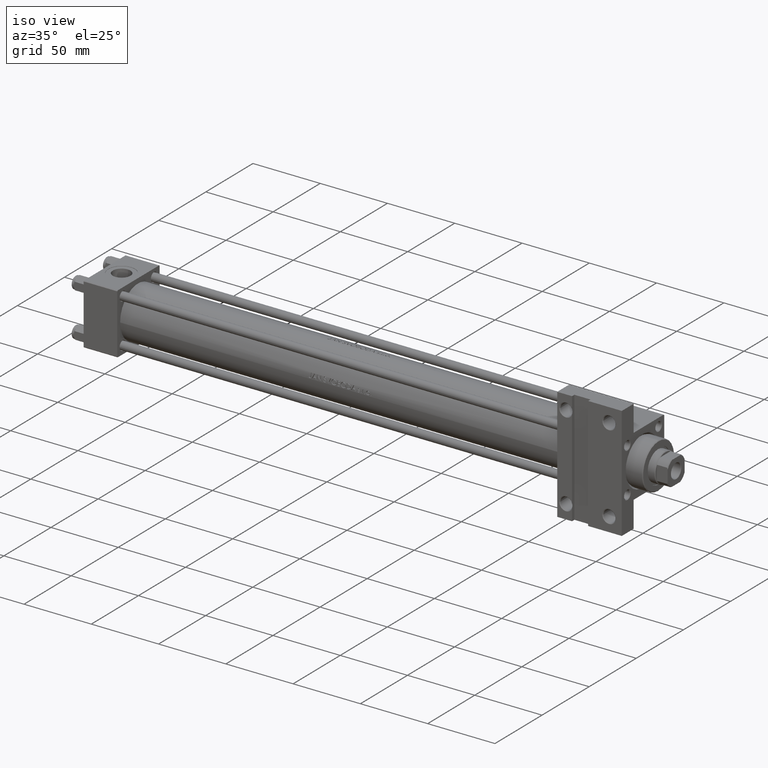
[diagram: clean part render]
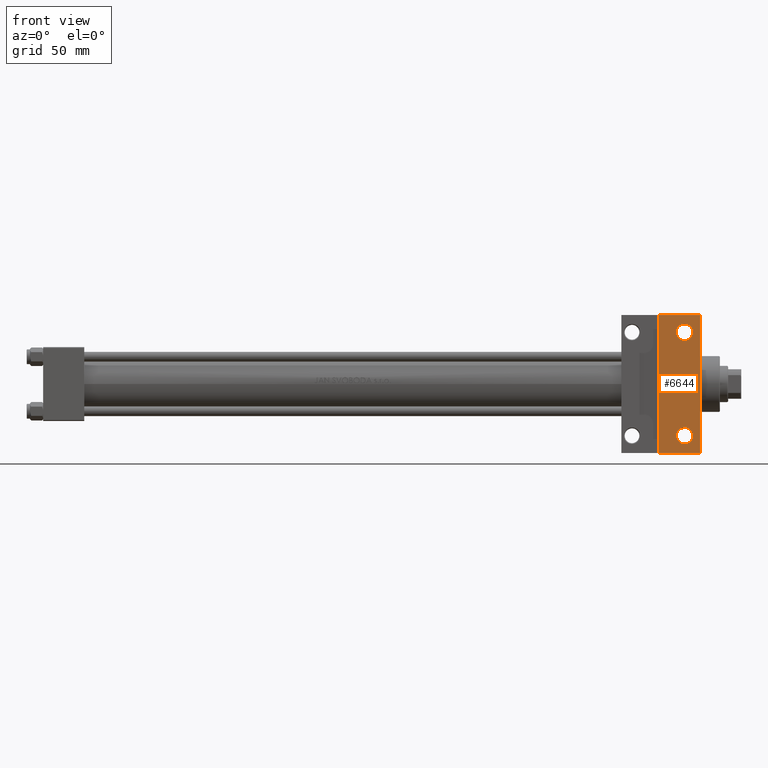
[diagram: tour spotlight — one face highlighted and labeled with its STEP entity id]
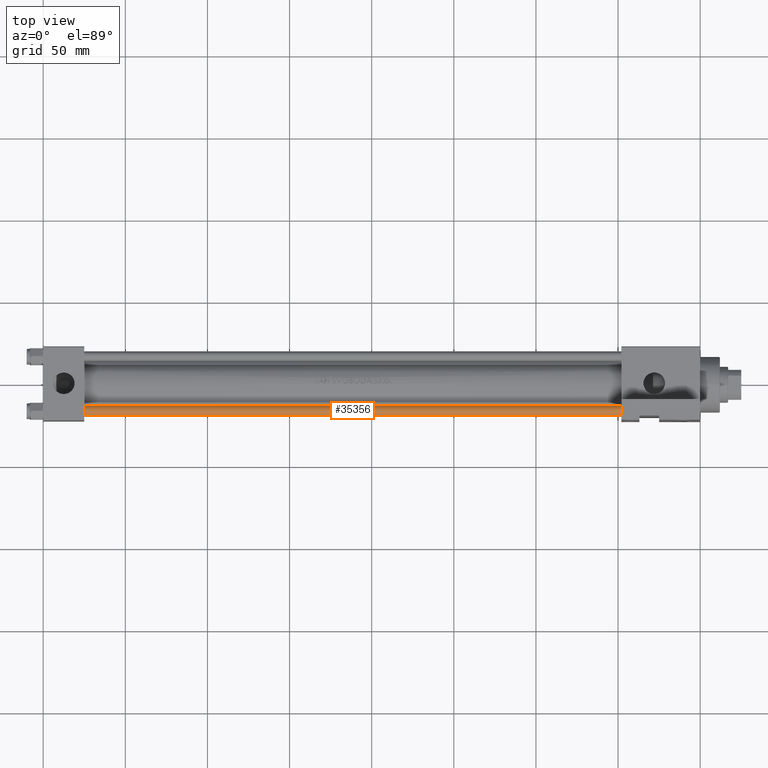
[diagram: tour spotlight — one face highlighted and labeled with its STEP entity id]
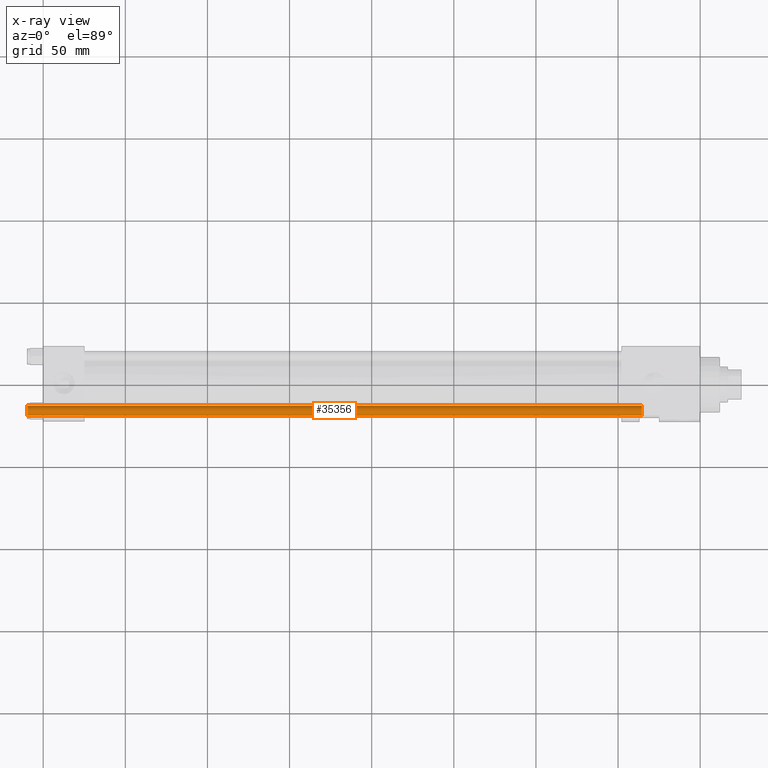
[diagram: x-ray of the same camera — body ghosted, this tour face saturated]
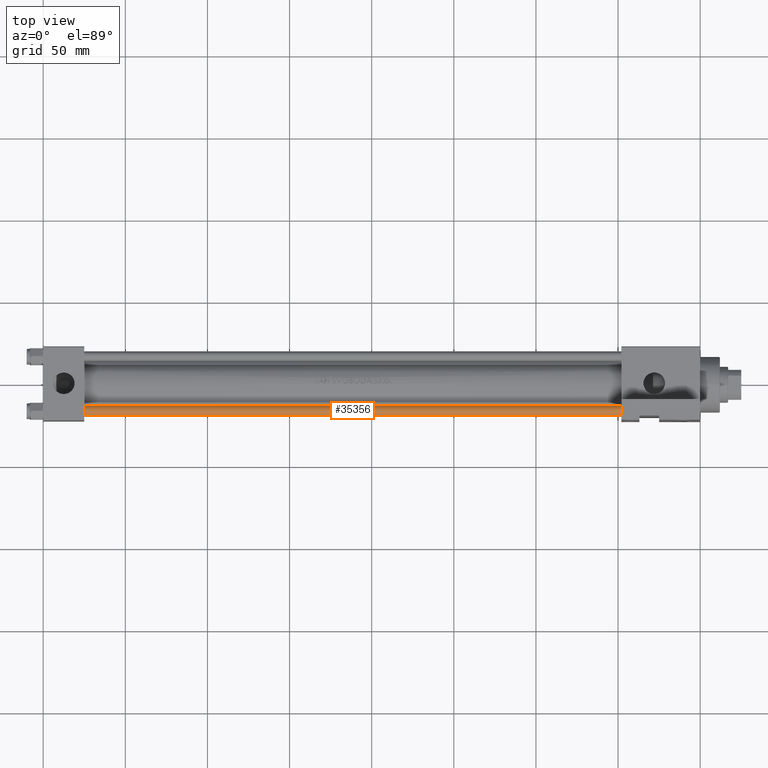
[diagram: tour spotlight — one face highlighted and labeled with its STEP entity id]
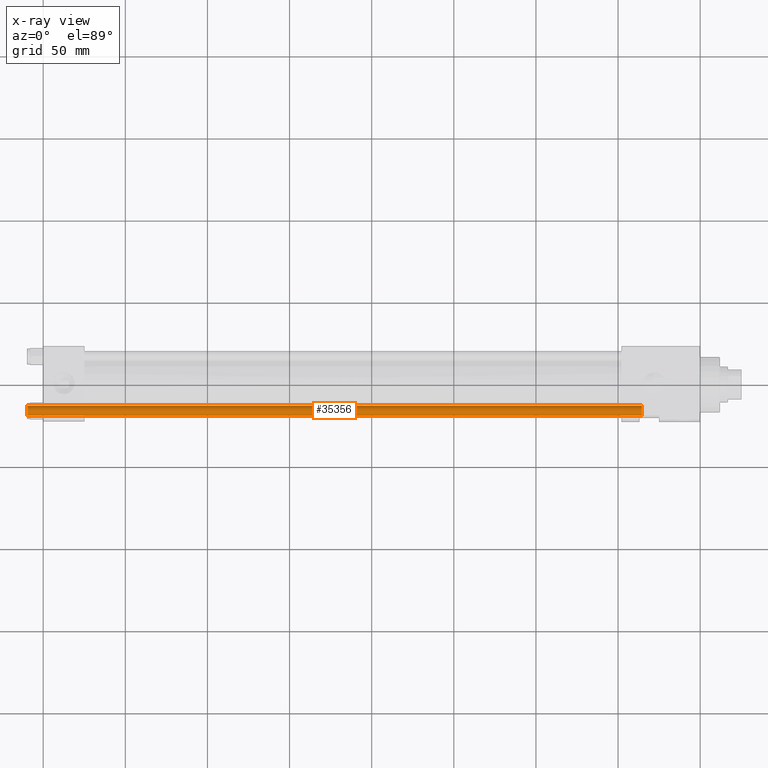
[diagram: x-ray of the same camera — body ghosted, this tour face saturated]
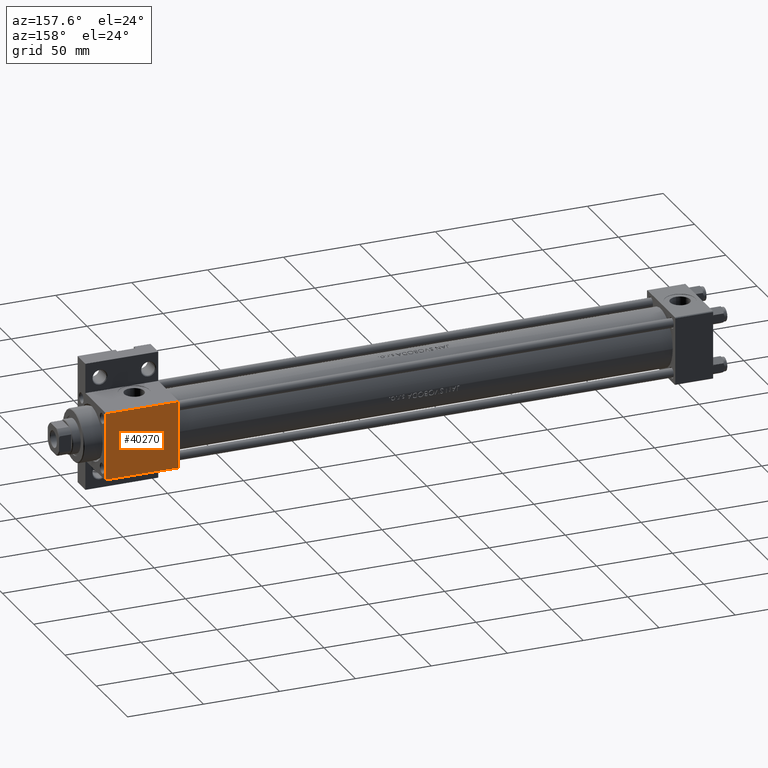
[diagram: tour spotlight — one face highlighted and labeled with its STEP entity id]
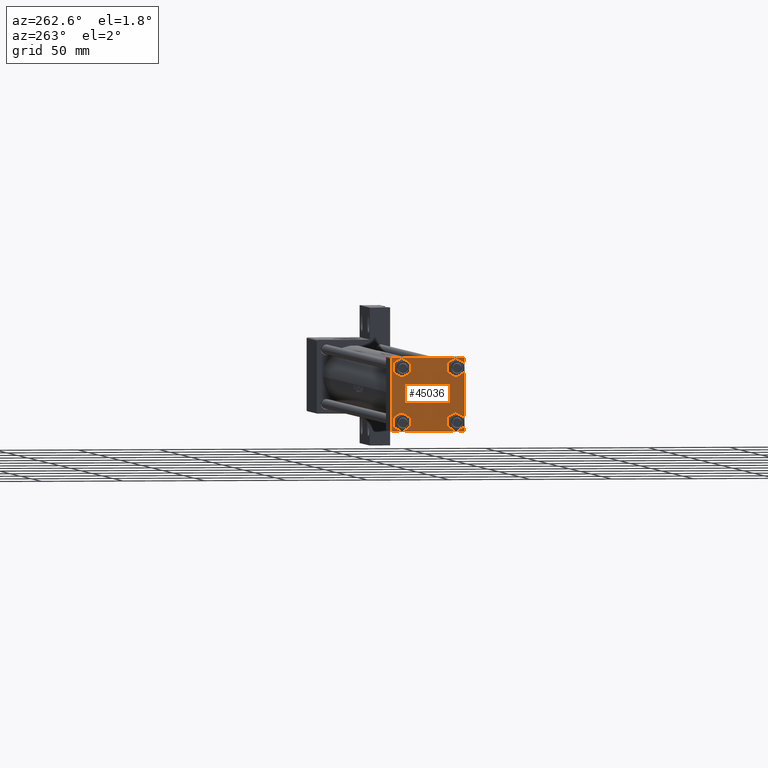
[diagram: tour spotlight — one face highlighted and labeled with its STEP entity id]
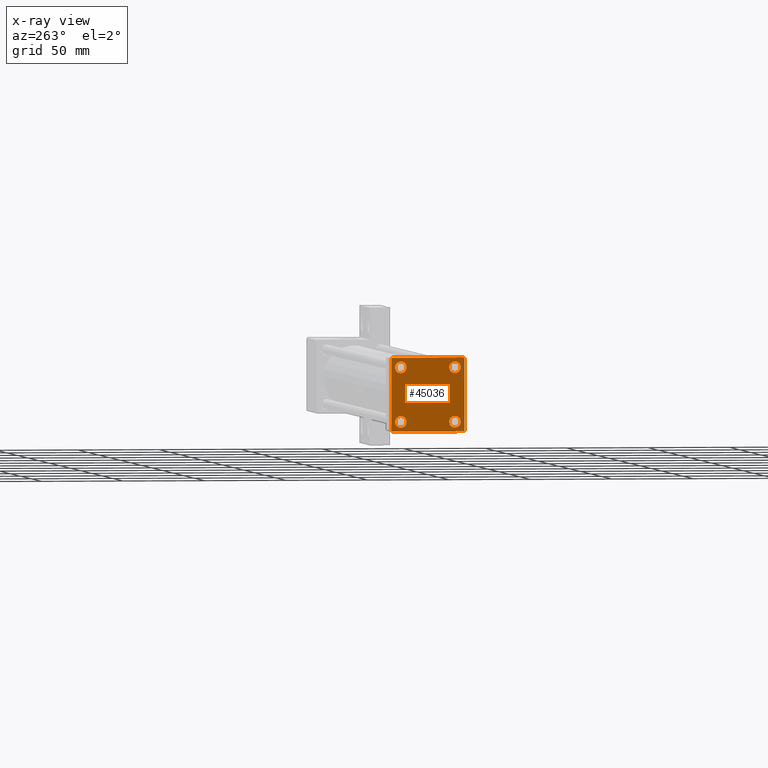
[diagram: x-ray of the same camera — body ghosted, this tour face saturated]
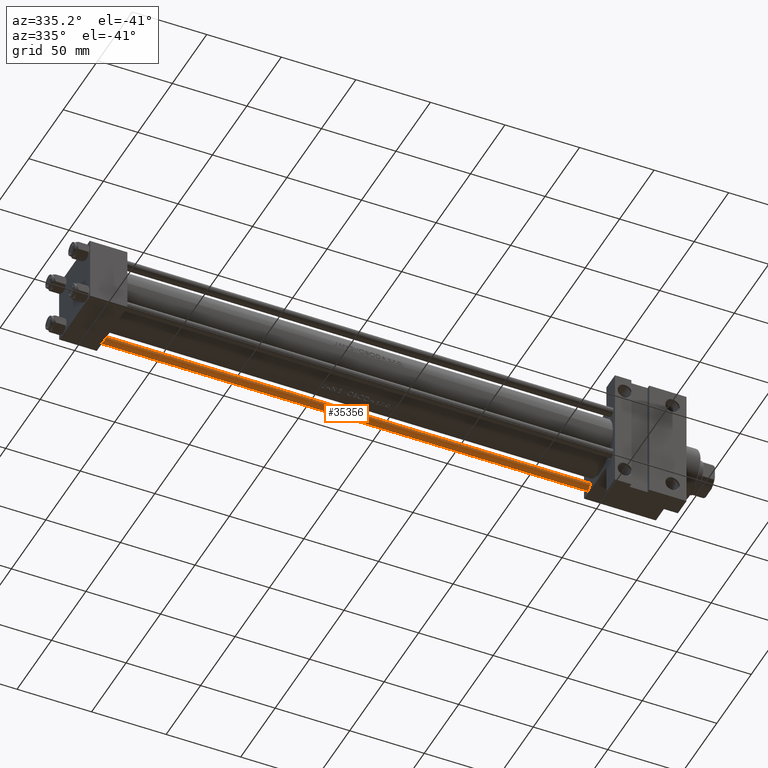
[diagram: tour spotlight — one face highlighted and labeled with its STEP entity id]
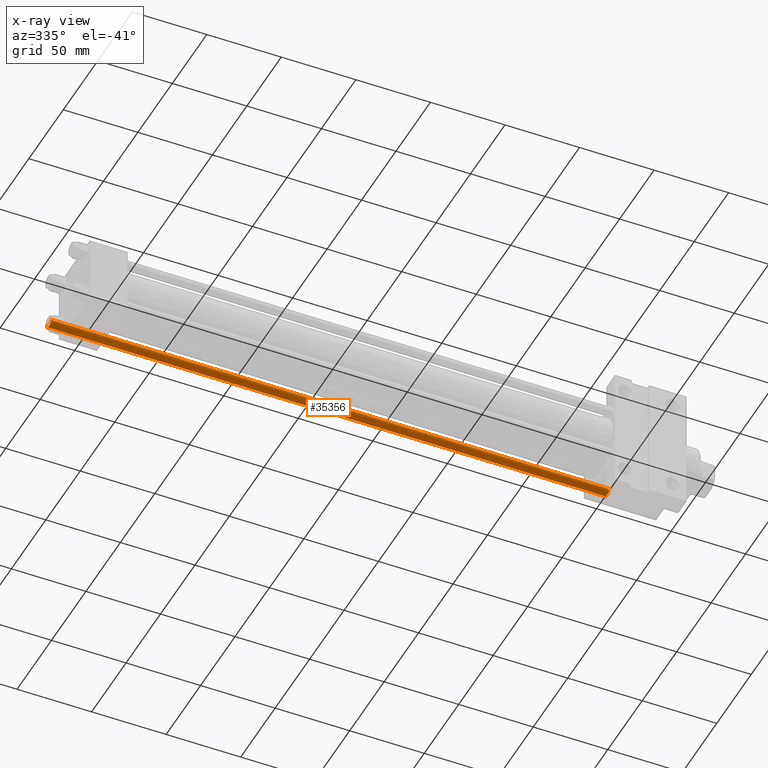
[diagram: x-ray of the same camera — body ghosted, this tour face saturated]
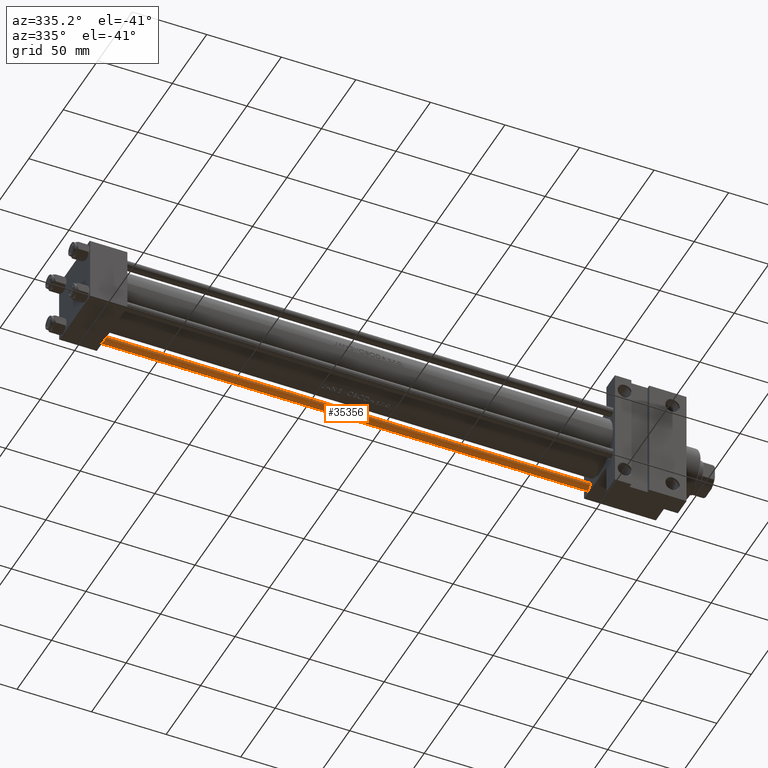
[diagram: tour spotlight — one face highlighted and labeled with its STEP entity id]
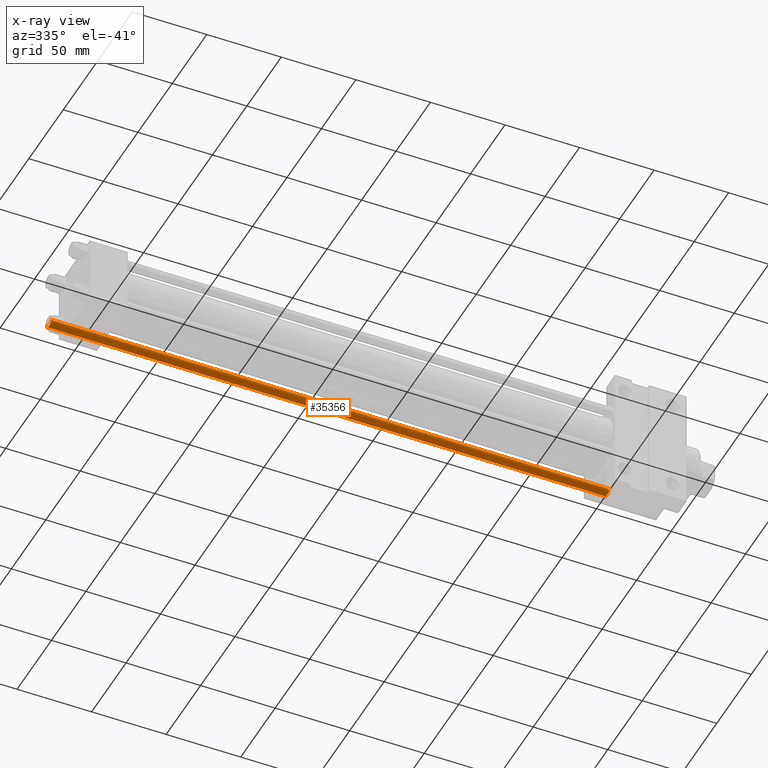
[diagram: x-ray of the same camera — body ghosted, this tour face saturated]
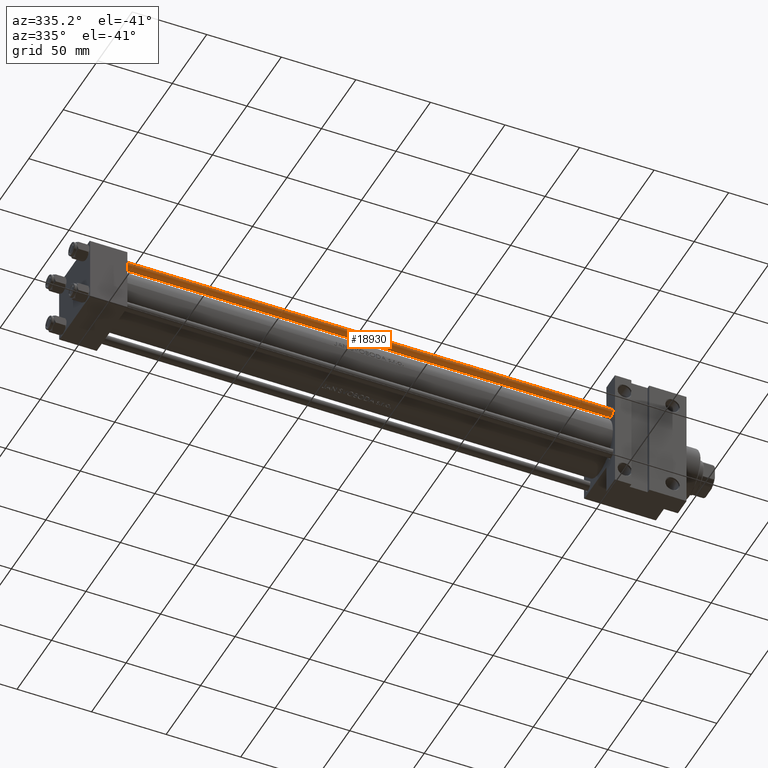
[diagram: tour spotlight — one face highlighted and labeled with its STEP entity id]
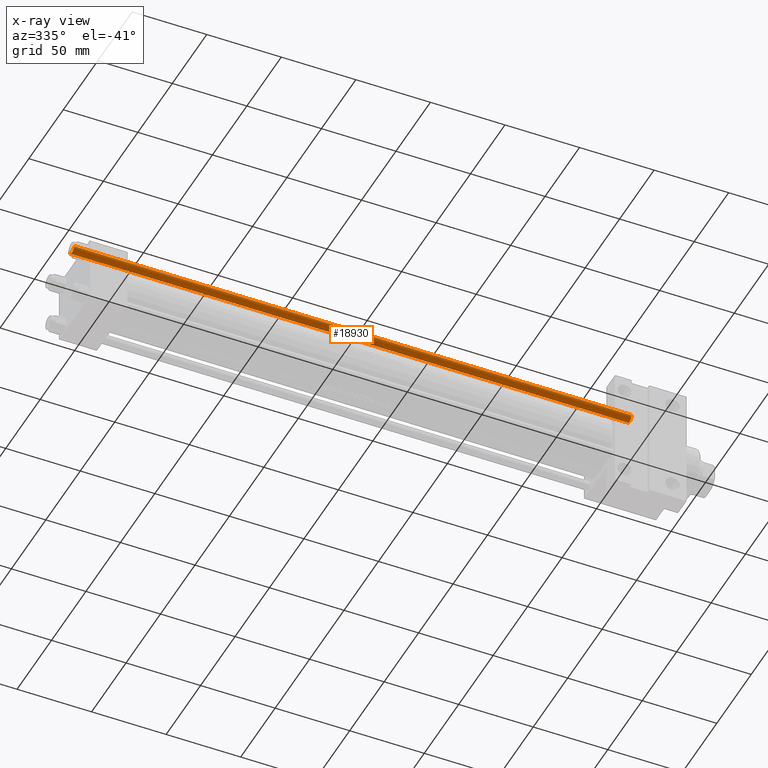
[diagram: x-ray of the same camera — body ghosted, this tour face saturated]
A machine part: a face-by-face anatomy tour. The part has 1102 B-rep faces; the first image is the clean iso view, then the 8 largest visible faces are spotlighted one at a time (largest first), each with its STEP entity span.

Face 1 — front view, entity #6644. In plain terms, the highlighted planar face has unit normal (0, -1, -0).
Definition (entity closure, byte-faithful):
#579 = EDGE_CURVE ( 'NONE', #14646, #38052, #19607, .T. ) ;
#2034 = EDGE_LOOP ( 'NONE', ( #15906, #8051 ) ) ;
#2330 = EDGE_LOOP ( 'NONE', ( #32465, #36974, #33854, #33674 ) ) ;
#2717 = EDGE_CURVE ( 'NONE', #7291, #44337, #41285, .T. ) ;
#2833 = DIRECTION ( 'NONE',  ( -0.000000000000000000, -7.709882115452476934E-17, 1.000000000000000000 ) ) ;
#3171 = CARTESIAN_POINT ( 'NONE',  ( 395.4994999999997844, -31.50000000000000000, -22.50000000000000000 ) ) ;
#3780 = LINE ( 'NONE', #18514, #23329 ) ;
#3814 = EDGE_CURVE ( 'NONE', #14780, #34359, #23994, .T. ) ;
#4974 = VECTOR ( 'NONE', #12231, 1000.000000000000000 ) ;
#5264 = FACE_OUTER_BOUND ( 'NONE', #2330, .T. ) ;
#5645 = DIRECTION ( 'NONE',  ( -0.000000000000000000, -1.000000000000000000, -0.000000000000000000 ) ) ;
#6644 = ADVANCED_FACE ( 'NONE', ( #5264, #9595, #39013 ), #46492, .T. ) ;
#7103 = DIRECTION ( 'NONE',  ( 0.000000000000000000, 1.000000000000000000, 0.000000000000000000 ) ) ;
#7291 = VERTEX_POINT ( 'NONE', #24866 ) ;
#7527 = EDGE_LOOP ( 'NONE', ( #33456, #21257 ) ) ;
#8051 = ORIENTED_EDGE ( 'NONE', *, *, #45797, .T. ) ;
#8374 = CARTESIAN_POINT ( 'NONE',  ( 400.0000000000000000, 22.50000000000000355, -22.49999999999999645 ) ) ;
#9595 = FACE_BOUND ( 'NONE', #7527, .T. ) ;
#9825 = DIRECTION ( 'NONE',  ( 0.000000000000000000, 7.709882115452476934E-17, -1.000000000000000000 ) ) ;
#12231 = DIRECTION ( 'NONE',  ( 0.000000000000000000, -1.000000000000000000, -7.709882115452476934E-17 ) ) ;
#12441 = CIRCLE ( 'NONE', #26328, 4.999499999999823530 ) ;
#13860 = CARTESIAN_POINT ( 'NONE',  ( 395.4994999999997844, 31.50000000000000000, -22.49999999999999645 ) ) ;
#14646 = VERTEX_POINT ( 'NONE', #13860 ) ;
#14780 = VERTEX_POINT ( 'NONE', #34574 ) ;
#15906 = ORIENTED_EDGE ( 'NONE', *, *, #2717, .T. ) ;
#16658 = VECTOR ( 'NONE', #5645, 1000.000000000000000 ) ;
#17653 = CARTESIAN_POINT ( 'NONE',  ( 352.0000000000000000, 41.99999999999996447, -22.50000000000000000 ) ) ;
#18514 = CARTESIAN_POINT ( 'NONE',  ( 352.0000000000000568, -42.00000000000003553, -22.50000000000000000 ) ) ;
#19486 = LINE ( 'NONE', #8374, #4974 ) ;
#19607 = CIRCLE ( 'NONE', #27307, 4.999499999999823530 ) ;
#21257 = ORIENTED_EDGE ( 'NONE', *, *, #579, .T. ) ;
#21411 = DIRECTION ( 'NONE',  ( 0.000000000000000000, 1.000000000000000000, 0.000000000000000000 ) ) ;
#21600 = DIRECTION ( 'NONE',  ( -0.000000000000000000, -7.709882115452476934E-17, 1.000000000000000000 ) ) ;
#23329 = VECTOR ( 'NONE', #36376, 1000.000000000000000 ) ;
#23570 = AXIS2_PLACEMENT_3D ( 'NONE', #42596, #28611, #7103 ) ;
#23694 = EDGE_CURVE ( 'NONE', #14780, #47301, #43689, .T. ) ;
#23746 = AXIS2_PLACEMENT_3D ( 'NONE', #24325, #9825, #31538 ) ;
#23979 = EDGE_CURVE ( 'NONE', #47301, #41010, #19486, .T. ) ;
#23994 = LINE ( 'NONE', #35301, #16658 ) ;
#24325 = CARTESIAN_POINT ( 'NONE',  ( 400.0000000000000000, 22.50000000000000355, -22.49999999999999645 ) ) ;
#24812 = CARTESIAN_POINT ( 'NONE',  ( 390.4999999999999432, -31.50000000000000000, -22.50000000000000000 ) ) ;
#24866 = CARTESIAN_POINT ( 'NONE',  ( 385.5005000000001587, -31.50000000000000000, -22.50000000000000000 ) ) ;
#25979 = CARTESIAN_POINT ( 'NONE',  ( 400.0000000000000000, -42.00000000000004974, -22.50000000000000000 ) ) ;
#26328 = AXIS2_PLACEMENT_3D ( 'NONE', #24812, #2833, #21411 ) ;
#27307 = AXIS2_PLACEMENT_3D ( 'NONE', #42828, #21600, #35598 ) ;
#27649 = EDGE_CURVE ( 'NONE', #41010, #34359, #3780, .T. ) ;
#28611 = DIRECTION ( 'NONE',  ( -0.000000000000000000, -7.709882115452476934E-17, 1.000000000000000000 ) ) ;
#31144 = CARTESIAN_POINT ( 'NONE',  ( 390.4999999999999432, 31.50000000000000000, -22.49999999999999645 ) ) ;
#31538 = DIRECTION ( 'NONE',  ( 0.000000000000000000, 1.000000000000000000, 7.709882115452476934E-17 ) ) ;
#32465 = ORIENTED_EDGE ( 'NONE', *, *, #3814, .F. ) ;
#33456 = ORIENTED_EDGE ( 'NONE', *, *, #34488, .T. ) ;
#33569 = CARTESIAN_POINT ( 'NONE',  ( 375.0000000000000000, -41.99999999999996447, -22.50000000000000000 ) ) ;
#33674 = ORIENTED_EDGE ( 'NONE', *, *, #27649, .T. ) ;
#33854 = ORIENTED_EDGE ( 'NONE', *, *, #23979, .T. ) ;
#34359 = VERTEX_POINT ( 'NONE', #33569 ) ;
#34488 = EDGE_CURVE ( 'NONE', #38052, #14646, #39124, .T. ) ;
#34574 = CARTESIAN_POINT ( 'NONE',  ( 375.0000000000000000, 41.99999999999996447, -22.50000000000000000 ) ) ;
#35301 = CARTESIAN_POINT ( 'NONE',  ( 375.0000000000000000, -41.99999999999996447, -22.50000000000000000 ) ) ;
#35466 = DIRECTION ( 'NONE',  ( 0.000000000000000000, 1.000000000000000000, 0.000000000000000000 ) ) ;
#35598 = DIRECTION ( 'NONE',  ( 0.000000000000000000, 1.000000000000000000, 0.000000000000000000 ) ) ;
#36376 = DIRECTION ( 'NONE',  ( -1.000000000000000000, 2.891205793294679312E-16, -0.000000000000000000 ) ) ;
#36545 = VECTOR ( 'NONE', #47080, 1000.000000000000000 ) ;
#36974 = ORIENTED_EDGE ( 'NONE', *, *, #23694, .T. ) ;
#38052 = VERTEX_POINT ( 'NONE', #41450 ) ;
#39013 = FACE_BOUND ( 'NONE', #2034, .T. ) ;
#39077 = DIRECTION ( 'NONE',  ( -0.000000000000000000, -7.709882115452476934E-17, 1.000000000000000000 ) ) ;
#39124 = CIRCLE ( 'NONE', #45280, 4.999499999999823530 ) ;
#41010 = VERTEX_POINT ( 'NONE', #25979 ) ;
#41285 = CIRCLE ( 'NONE', #23570, 4.999499999999823530 ) ;
#41450 = CARTESIAN_POINT ( 'NONE',  ( 385.5005000000001587, 31.50000000000000000, -22.49999999999999645 ) ) ;
#42108 = CARTESIAN_POINT ( 'NONE',  ( 400.0000000000000000, 41.99999999999996447, -22.50000000000000000 ) ) ;
#42596 = CARTESIAN_POINT ( 'NONE',  ( 390.4999999999999432, -31.50000000000000000, -22.50000000000000000 ) ) ;
#42828 = CARTESIAN_POINT ( 'NONE',  ( 390.4999999999999432, 31.50000000000000000, -22.49999999999999645 ) ) ;
#43689 = LINE ( 'NONE', #17653, #36545 ) ;
#44337 = VERTEX_POINT ( 'NONE', #3171 ) ;
#45280 = AXIS2_PLACEMENT_3D ( 'NONE', #31144, #39077, #35466 ) ;
#45797 = EDGE_CURVE ( 'NONE', #44337, #7291, #12441, .T. ) ;
#46492 = PLANE ( 'NONE',  #23746 ) ;
#47080 = DIRECTION ( 'NONE',  ( 1.000000000000000000, 0.000000000000000000, 0.000000000000000000 ) ) ;
#47301 = VERTEX_POINT ( 'NONE', #42108 ) ;

Face 2 — top view, entity #35356. An x-ray twin of the same camera follows (body ghosted, this face saturated) — the face is partly hidden behind the body. In plain terms, the highlighted cylindrical surface (edge-blend (fillet) strip) has radius 3 mm, axis along (1, -0, 0).
Definition (entity closure, byte-faithful):
#4066 = AXIS2_PLACEMENT_3D ( 'NONE', #5415, #23279, #24002 ) ;
#4864 = CIRCLE ( 'NONE', #4066, 3.000000000000000444 ) ;
#5415 = CARTESIAN_POINT ( 'NONE',  ( 0.000000000000000000, 0.000000000000000000, 0.5000000000000559552 ) ) ;
#7428 = CARTESIAN_POINT ( 'NONE',  ( -3.000000000000000444, 0.000000000000000000, 0.5000000000000559552 ) ) ;
#9141 = ORIENTED_EDGE ( 'NONE', *, *, #30379, .T. ) ;
#9895 = AXIS2_PLACEMENT_3D ( 'NONE', #25104, #39790, #28726 ) ;
#10609 = FACE_OUTER_BOUND ( 'NONE', #44442, .T. ) ;
#11663 = DIRECTION ( 'NONE',  ( -0.000000000000000000, -0.000000000000000000, -1.000000000000000000 ) ) ;
#12102 = ORIENTED_EDGE ( 'NONE', *, *, #14703, .T. ) ;
#14149 = CIRCLE ( 'NONE', #21081, 3.000000000000000444 ) ;
#14490 = EDGE_CURVE ( 'NONE', #17461, #28757, #26797, .T. ) ;
#14703 = EDGE_CURVE ( 'NONE', #47059, #26725, #26639, .T. ) ;
#16732 = DIRECTION ( 'NONE',  ( 0.000000000000000000, 0.000000000000000000, -1.000000000000000000 ) ) ;
#17461 = VERTEX_POINT ( 'NONE', #31084 ) ;
#20667 = EDGE_CURVE ( 'NONE', #26725, #28757, #4864, .T. ) ;
#21081 = AXIS2_PLACEMENT_3D ( 'NONE', #35070, #16732, #46152 ) ;
#23279 = DIRECTION ( 'NONE',  ( -0.000000000000000000, -0.000000000000000000, 1.000000000000000000 ) ) ;
#24002 = DIRECTION ( 'NONE',  ( 1.000000000000000000, 0.000000000000000000, 0.000000000000000000 ) ) ;
#25104 = CARTESIAN_POINT ( 'NONE',  ( 0.000000000000000000, 0.000000000000000000, 375.0000000000000000 ) ) ;
#25247 = CARTESIAN_POINT ( 'NONE',  ( 3.000000000000000444, 3.673940397442060361E-16, 0.5000000000000559552 ) ) ;
#25816 = CYLINDRICAL_SURFACE ( 'NONE', #9895, 3.000000000000000444 ) ;
#26639 = LINE ( 'NONE', #30481, #35474 ) ;
#26725 = VERTEX_POINT ( 'NONE', #7428 ) ;
#26797 = LINE ( 'NONE', #45338, #32412 ) ;
#28726 = DIRECTION ( 'NONE',  ( -1.000000000000000000, 0.000000000000000000, 0.000000000000000000 ) ) ;
#28757 = VERTEX_POINT ( 'NONE', #25247 ) ;
#30379 = EDGE_CURVE ( 'NONE', #17461, #47059, #14149, .T. ) ;
#30481 = CARTESIAN_POINT ( 'NONE',  ( -3.000000000000000444, 0.000000000000000000, 375.0000000000000000 ) ) ;
#31084 = CARTESIAN_POINT ( 'NONE',  ( 3.000000000000000444, 3.673940397442060361E-16, 374.5000000000000000 ) ) ;
#32412 = VECTOR ( 'NONE', #38112, 1000.000000000000000 ) ;
#34958 = ORIENTED_EDGE ( 'NONE', *, *, #20667, .T. ) ;
#35070 = CARTESIAN_POINT ( 'NONE',  ( 0.000000000000000000, 0.000000000000000000, 374.5000000000000000 ) ) ;
#35356 = ADVANCED_FACE ( 'NONE', ( #10609 ), #25816, .T. ) ;
#35474 = VECTOR ( 'NONE', #11663, 1000.000000000000000 ) ;
#38112 = DIRECTION ( 'NONE',  ( -0.000000000000000000, -0.000000000000000000, -1.000000000000000000 ) ) ;
#39790 = DIRECTION ( 'NONE',  ( -0.000000000000000000, -0.000000000000000000, -1.000000000000000000 ) ) ;
#44442 = EDGE_LOOP ( 'NONE', ( #46754, #9141, #12102, #34958 ) ) ;
#45338 = CARTESIAN_POINT ( 'NONE',  ( 3.000000000000000444, 3.673940397442060361E-16, 375.0000000000000000 ) ) ;
#46152 = DIRECTION ( 'NONE',  ( 1.000000000000000000, 0.000000000000000000, 0.000000000000000000 ) ) ;
#46754 = ORIENTED_EDGE ( 'NONE', *, *, #14490, .F. ) ;
#47059 = VERTEX_POINT ( 'NONE', #47726 ) ;
#47726 = CARTESIAN_POINT ( 'NONE',  ( -3.000000000000000444, 0.000000000000000000, 374.5000000000000000 ) ) ;

Face 3 — top view, entity #35356. An x-ray twin of the same camera follows (body ghosted, this face saturated) — the face is partly hidden behind the body. In plain terms, the highlighted cylindrical surface (edge-blend (fillet) strip) has radius 3 mm, axis along (-1, 0, 0).
Definition (entity closure, byte-faithful):
#4066 = AXIS2_PLACEMENT_3D ( 'NONE', #5415, #23279, #24002 ) ;
#4864 = CIRCLE ( 'NONE', #4066, 3.000000000000000444 ) ;
#5415 = CARTESIAN_POINT ( 'NONE',  ( 0.000000000000000000, 0.000000000000000000, 0.5000000000000559552 ) ) ;
#7428 = CARTESIAN_POINT ( 'NONE',  ( -3.000000000000000444, 0.000000000000000000, 0.5000000000000559552 ) ) ;
#9141 = ORIENTED_EDGE ( 'NONE', *, *, #30379, .T. ) ;
#9895 = AXIS2_PLACEMENT_3D ( 'NONE', #25104, #39790, #28726 ) ;
#10609 = FACE_OUTER_BOUND ( 'NONE', #44442, .T. ) ;
#11663 = DIRECTION ( 'NONE',  ( -0.000000000000000000, -0.000000000000000000, -1.000000000000000000 ) ) ;
#12102 = ORIENTED_EDGE ( 'NONE', *, *, #14703, .T. ) ;
#14149 = CIRCLE ( 'NONE', #21081, 3.000000000000000444 ) ;
#14490 = EDGE_CURVE ( 'NONE', #17461, #28757, #26797, .T. ) ;
#14703 = EDGE_CURVE ( 'NONE', #47059, #26725, #26639, .T. ) ;
#16732 = DIRECTION ( 'NONE',  ( 0.000000000000000000, 0.000000000000000000, -1.000000000000000000 ) ) ;
#17461 = VERTEX_POINT ( 'NONE', #31084 ) ;
#20667 = EDGE_CURVE ( 'NONE', #26725, #28757, #4864, .T. ) ;
#21081 = AXIS2_PLACEMENT_3D ( 'NONE', #35070, #16732, #46152 ) ;
#23279 = DIRECTION ( 'NONE',  ( -0.000000000000000000, -0.000000000000000000, 1.000000000000000000 ) ) ;
#24002 = DIRECTION ( 'NONE',  ( 1.000000000000000000, 0.000000000000000000, 0.000000000000000000 ) ) ;
#25104 = CARTESIAN_POINT ( 'NONE',  ( 0.000000000000000000, 0.000000000000000000, 375.0000000000000000 ) ) ;
#25247 = CARTESIAN_POINT ( 'NONE',  ( 3.000000000000000444, 3.673940397442060361E-16, 0.5000000000000559552 ) ) ;
#25816 = CYLINDRICAL_SURFACE ( 'NONE', #9895, 3.000000000000000444 ) ;
#26639 = LINE ( 'NONE', #30481, #35474 ) ;
#26725 = VERTEX_POINT ( 'NONE', #7428 ) ;
#26797 = LINE ( 'NONE', #45338, #32412 ) ;
#28726 = DIRECTION ( 'NONE',  ( -1.000000000000000000, 0.000000000000000000, 0.000000000000000000 ) ) ;
#28757 = VERTEX_POINT ( 'NONE', #25247 ) ;
#30379 = EDGE_CURVE ( 'NONE', #17461, #47059, #14149, .T. ) ;
#30481 = CARTESIAN_POINT ( 'NONE',  ( -3.000000000000000444, 0.000000000000000000, 375.0000000000000000 ) ) ;
#31084 = CARTESIAN_POINT ( 'NONE',  ( 3.000000000000000444, 3.673940397442060361E-16, 374.5000000000000000 ) ) ;
#32412 = VECTOR ( 'NONE', #38112, 1000.000000000000000 ) ;
#34958 = ORIENTED_EDGE ( 'NONE', *, *, #20667, .T. ) ;
#35070 = CARTESIAN_POINT ( 'NONE',  ( 0.000000000000000000, 0.000000000000000000, 374.5000000000000000 ) ) ;
#35356 = ADVANCED_FACE ( 'NONE', ( #10609 ), #25816, .T. ) ;
#35474 = VECTOR ( 'NONE', #11663, 1000.000000000000000 ) ;
#38112 = DIRECTION ( 'NONE',  ( -0.000000000000000000, -0.000000000000000000, -1.000000000000000000 ) ) ;
#39790 = DIRECTION ( 'NONE',  ( -0.000000000000000000, -0.000000000000000000, -1.000000000000000000 ) ) ;
#44442 = EDGE_LOOP ( 'NONE', ( #46754, #9141, #12102, #34958 ) ) ;
#45338 = CARTESIAN_POINT ( 'NONE',  ( 3.000000000000000444, 3.673940397442060361E-16, 375.0000000000000000 ) ) ;
#46152 = DIRECTION ( 'NONE',  ( 1.000000000000000000, 0.000000000000000000, 0.000000000000000000 ) ) ;
#46754 = ORIENTED_EDGE ( 'NONE', *, *, #14490, .F. ) ;
#47059 = VERTEX_POINT ( 'NONE', #47726 ) ;
#47726 = CARTESIAN_POINT ( 'NONE',  ( -3.000000000000000444, 0.000000000000000000, 374.5000000000000000 ) ) ;

Face 4 — auxiliary view, entity #40270. In plain terms, the highlighted planar face has unit normal (0, -1, -0).
Definition (entity closure, byte-faithful):
#650 = VECTOR ( 'NONE', #27094, 1000.000000000000000 ) ;
#2526 = VECTOR ( 'NONE', #6825, 1000.000000000000000 ) ;
#2819 = VERTEX_POINT ( 'NONE', #18696 ) ;
#3880 = CARTESIAN_POINT ( 'NONE',  ( 352.0000000000000568, 22.00000000000000355, 22.50000000000000355 ) ) ;
#5214 = CARTESIAN_POINT ( 'NONE',  ( 400.0000000000000000, -21.99999999999998224, 22.49999999999999289 ) ) ;
#6825 = DIRECTION ( 'NONE',  ( 0.000000000000000000, -1.000000000000000000, -2.312964634635742957E-16 ) ) ;
#7430 = ORIENTED_EDGE ( 'NONE', *, *, #35088, .T. ) ;
#7739 = FACE_OUTER_BOUND ( 'NONE', #37999, .T. ) ;
#10022 = LINE ( 'NONE', #43293, #29901 ) ;
#10455 = LINE ( 'NONE', #25178, #2526 ) ;
#11838 = DIRECTION ( 'NONE',  ( 0.000000000000000000, 2.312964634635742957E-16, -1.000000000000000000 ) ) ;
#15487 = ORIENTED_EDGE ( 'NONE', *, *, #36463, .T. ) ;
#17406 = CARTESIAN_POINT ( 'NONE',  ( 400.0000000000000000, -21.99999999999999645, 22.49999999999999289 ) ) ;
#18696 = CARTESIAN_POINT ( 'NONE',  ( 352.0000000000000568, -21.99999999999998224, 22.49999999999999289 ) ) ;
#19091 = PLANE ( 'NONE',  #28465 ) ;
#20775 = EDGE_CURVE ( 'NONE', #27768, #47313, #10455, .T. ) ;
#23718 = VERTEX_POINT ( 'NONE', #3880 ) ;
#25130 = DIRECTION ( 'NONE',  ( 1.000000000000000000, 0.000000000000000000, 0.000000000000000000 ) ) ;
#25178 = CARTESIAN_POINT ( 'NONE',  ( 400.0000000000000000, 22.50000000000000355, 22.50000000000000355 ) ) ;
#26488 = CARTESIAN_POINT ( 'NONE',  ( 400.0000000000000000, 22.00000000000000355, 22.50000000000000355 ) ) ;
#26669 = ORIENTED_EDGE ( 'NONE', *, *, #39271, .T. ) ;
#27094 = DIRECTION ( 'NONE',  ( 0.000000000000000000, -1.000000000000000000, -2.312964634635742957E-16 ) ) ;
#27396 = ORIENTED_EDGE ( 'NONE', *, *, #20775, .F. ) ;
#27768 = VERTEX_POINT ( 'NONE', #26488 ) ;
#28465 = AXIS2_PLACEMENT_3D ( 'NONE', #43924, #11838, #37416 ) ;
#29901 = VECTOR ( 'NONE', #43532, 1000.000000000000000 ) ;
#32238 = VECTOR ( 'NONE', #25130, 1000.000000000000000 ) ;
#35088 = EDGE_CURVE ( 'NONE', #27768, #23718, #10022, .T. ) ;
#36463 = EDGE_CURVE ( 'NONE', #23718, #2819, #44925, .T. ) ;
#37416 = DIRECTION ( 'NONE',  ( 0.000000000000000000, 1.000000000000000000, 2.312964634635742957E-16 ) ) ;
#37999 = EDGE_LOOP ( 'NONE', ( #27396, #7430, #15487, #26669 ) ) ;
#38878 = LINE ( 'NONE', #17406, #32238 ) ;
#39271 = EDGE_CURVE ( 'NONE', #2819, #47313, #38878, .T. ) ;
#40270 = ADVANCED_FACE ( 'NONE', ( #7739 ), #19091, .F. ) ;
#41544 = CARTESIAN_POINT ( 'NONE',  ( 352.0000000000000568, 22.50000000000000355, 22.50000000000000355 ) ) ;
#43293 = CARTESIAN_POINT ( 'NONE',  ( 352.0000000000000568, 22.00000000000000355, 22.50000000000000355 ) ) ;
#43532 = DIRECTION ( 'NONE',  ( -1.000000000000000000, 0.000000000000000000, 0.000000000000000000 ) ) ;
#43924 = CARTESIAN_POINT ( 'NONE',  ( 400.0000000000000000, 22.50000000000000355, 22.50000000000000355 ) ) ;
#44925 = LINE ( 'NONE', #41544, #650 ) ;
#47313 = VERTEX_POINT ( 'NONE', #5214 ) ;

Face 5 — auxiliary view, entity #45036. An x-ray twin of the same camera follows (body ghosted, this face saturated) — the face is partly hidden behind the body. In plain terms, the highlighted planar face has unit normal (-1, 0, -0).
Definition (entity closure, byte-faithful):
#123 = EDGE_CURVE ( 'NONE', #31862, #7141, #6472, .T. ) ;
#814 = CARTESIAN_POINT ( 'NONE',  ( 0.000000000000000000, -22.50000000000000000, 22.00000000000000000 ) ) ;
#1523 = DIRECTION ( 'NONE',  ( 0.000000000000000000, 0.000000000000000000, 1.000000000000000000 ) ) ;
#2068 = DIRECTION ( 'NONE',  ( 0.000000000000000000, 0.000000000000000000, 1.000000000000000000 ) ) ;
#2218 = DIRECTION ( 'NONE',  ( 0.000000000000000000, -1.000000000000000000, -2.312964634635742957E-16 ) ) ;
#2332 = DIRECTION ( 'NONE',  ( -0.000000000000000000, 0.7071067811865525687, 0.7071067811865425767 ) ) ;
#2555 = DIRECTION ( 'NONE',  ( 0.000000000000000000, 0.7071067811865474617, -0.7071067811865474617 ) ) ;
#2564 = DIRECTION ( 'NONE',  ( 1.000000000000000000, -0.000000000000000000, 0.000000000000000000 ) ) ;
#3533 = CARTESIAN_POINT ( 'NONE',  ( 0.000000000000000000, -16.59999999999999076, 16.60000000000000853 ) ) ;
#3938 = EDGE_CURVE ( 'NONE', #18176, #41321, #32394, .T. ) ;
#4102 = CARTESIAN_POINT ( 'NONE',  ( 0.000000000000000000, -22.50000000000000000, -21.99999999999997158 ) ) ;
#4277 = CARTESIAN_POINT ( 'NONE',  ( 0.000000000000000000, 16.59999999999999787, -16.60000000000000497 ) ) ;
#5416 = VECTOR ( 'NONE', #2218, 1000.000000000000000 ) ;
#6066 = ORIENTED_EDGE ( 'NONE', *, *, #35815, .T. ) ;
#6401 = PLANE ( 'NONE',  #21640 ) ;
#6472 = CIRCLE ( 'NONE', #24997, 3.499999999999996003 ) ;
#6626 = DIRECTION ( 'NONE',  ( -1.000000000000000000, 0.000000000000000000, -0.000000000000000000 ) ) ;
#7141 = VERTEX_POINT ( 'NONE', #26104 ) ;
#7684 = CIRCLE ( 'NONE', #37748, 3.499999999999996003 ) ;
#8220 = CARTESIAN_POINT ( 'NONE',  ( 0.000000000000000000, 22.25000000000014566, -22.24999999999984013 ) ) ;
#8252 = LINE ( 'NONE', #43967, #36200 ) ;
#8552 = VERTEX_POINT ( 'NONE', #16502 ) ;
#8917 = EDGE_CURVE ( 'NONE', #33128, #31658, #7684, .T. ) ;
#9465 = EDGE_CURVE ( 'NONE', #20098, #36723, #8252, .T. ) ;
#9581 = LINE ( 'NONE', #24312, #47511 ) ;
#10014 = FACE_BOUND ( 'NONE', #42785, .T. ) ;
#10189 = LINE ( 'NONE', #10653, #5416 ) ;
#10202 = CARTESIAN_POINT ( 'NONE',  ( 0.000000000000000000, 22.50000000000000000, 21.99999999999999645 ) ) ;
#10258 = FACE_BOUND ( 'NONE', #41349, .T. ) ;
#10278 = LINE ( 'NONE', #35853, #17220 ) ;
#10448 = DIRECTION ( 'NONE',  ( 0.000000000000000000, 0.000000000000000000, -1.000000000000000000 ) ) ;
#10653 = CARTESIAN_POINT ( 'NONE',  ( 0.000000000000000000, 22.50000000000000000, -22.49999999999999645 ) ) ;
#11610 = CARTESIAN_POINT ( 'NONE',  ( 0.000000000000000000, 16.59999999999999787, -13.10000000000000675 ) ) ;
#12803 = VECTOR ( 'NONE', #10448, 1000.000000000000000 ) ;
#13842 = ORIENTED_EDGE ( 'NONE', *, *, #31513, .T. ) ;
#13965 = ORIENTED_EDGE ( 'NONE', *, *, #45429, .T. ) ;
#14014 = VECTOR ( 'NONE', #17970, 1000.000000000000000 ) ;
#14030 = CARTESIAN_POINT ( 'NONE',  ( 0.000000000000000000, 16.59999999999999787, -16.60000000000000497 ) ) ;
#15215 = ORIENTED_EDGE ( 'NONE', *, *, #8917, .T. ) ;
#15616 = ORIENTED_EDGE ( 'NONE', *, *, #3938, .T. ) ;
#16089 = DIRECTION ( 'NONE',  ( 0.000000000000000000, 0.000000000000000000, -1.000000000000000000 ) ) ;
#16222 = AXIS2_PLACEMENT_3D ( 'NONE', #4277, #26004, #33477 ) ;
#16502 = CARTESIAN_POINT ( 'NONE',  ( 0.000000000000000000, 16.59999999999999787, 13.10000000000000675 ) ) ;
#16916 = DIRECTION ( 'NONE',  ( 1.000000000000000000, -0.000000000000000000, 0.000000000000000000 ) ) ;
#17220 = VECTOR ( 'NONE', #2555, 1000.000000000000114 ) ;
#17261 = CIRCLE ( 'NONE', #36494, 3.499999999999996003 ) ;
#17325 = DIRECTION ( 'NONE',  ( 0.000000000000000000, 0.000000000000000000, 1.000000000000000000 ) ) ;
#17477 = CARTESIAN_POINT ( 'NONE',  ( 0.000000000000000000, 16.59999999999999787, 20.10000000000000142 ) ) ;
#17753 = DIRECTION ( 'NONE',  ( 0.000000000000000000, 0.000000000000000000, 1.000000000000000000 ) ) ;
#17928 = EDGE_CURVE ( 'NONE', #39525, #41806, #20887, .T. ) ;
#17970 = DIRECTION ( 'NONE',  ( 0.000000000000000000, -1.000000000000000000, -7.709882115452476934E-17 ) ) ;
#17992 = VERTEX_POINT ( 'NONE', #814 ) ;
#18065 = CARTESIAN_POINT ( 'NONE',  ( 0.000000000000000000, 21.99999999999999289, 22.50000000000000355 ) ) ;
#18176 = VERTEX_POINT ( 'NONE', #10202 ) ;
#18364 = AXIS2_PLACEMENT_3D ( 'NONE', #20312, #16916, #43191 ) ;
#19904 = CARTESIAN_POINT ( 'NONE',  ( 0.000000000000000000, -16.59999999999999076, -20.10000000000000497 ) ) ;
#20094 = CIRCLE ( 'NONE', #16222, 3.499999999999996003 ) ;
#20098 = VERTEX_POINT ( 'NONE', #27491 ) ;
#20287 = EDGE_CURVE ( 'NONE', #31658, #33128, #41054, .T. ) ;
#20312 = CARTESIAN_POINT ( 'NONE',  ( 0.000000000000000000, 16.59999999999999787, 16.60000000000000497 ) ) ;
#20887 = LINE ( 'NONE', #29068, #14014 ) ;
#21051 = DIRECTION ( 'NONE',  ( 1.000000000000000000, -0.000000000000000000, 0.000000000000000000 ) ) ;
#21119 = EDGE_LOOP ( 'NONE', ( #15215, #37988 ) ) ;
#21191 = DIRECTION ( 'NONE',  ( 1.000000000000000000, -0.000000000000000000, 0.000000000000000000 ) ) ;
#21348 = DIRECTION ( 'NONE',  ( -0.000000000000000000, 0.000000000000000000, 1.000000000000000000 ) ) ;
#21640 = AXIS2_PLACEMENT_3D ( 'NONE', #36296, #6626, #21348 ) ;
#22696 = ORIENTED_EDGE ( 'NONE', *, *, #31321, .F. ) ;
#23193 = VECTOR ( 'NONE', #26347, 1000.000000000000000 ) ;
#23256 = DIRECTION ( 'NONE',  ( 1.000000000000000000, -0.000000000000000000, 0.000000000000000000 ) ) ;
#24312 = CARTESIAN_POINT ( 'NONE',  ( -0.000000000000000000, -22.24999999999984013, 22.25000000000015277 ) ) ;
#24876 = EDGE_CURVE ( 'NONE', #39525, #18176, #10278, .T. ) ;
#24962 = CARTESIAN_POINT ( 'NONE',  ( 0.000000000000000000, -16.59999999999999076, 13.10000000000001030 ) ) ;
#24997 = AXIS2_PLACEMENT_3D ( 'NONE', #3533, #21191, #17325 ) ;
#25679 = CARTESIAN_POINT ( 'NONE',  ( 0.000000000000000000, -16.59999999999999076, -13.10000000000001030 ) ) ;
#26004 = DIRECTION ( 'NONE',  ( 1.000000000000000000, -0.000000000000000000, 0.000000000000000000 ) ) ;
#26061 = CARTESIAN_POINT ( 'NONE',  ( 0.000000000000000000, -16.59999999999999076, -16.60000000000000853 ) ) ;
#26104 = CARTESIAN_POINT ( 'NONE',  ( 0.000000000000000000, -16.59999999999999076, 20.10000000000000853 ) ) ;
#26347 = DIRECTION ( 'NONE',  ( -0.000000000000000000, -0.7071067811865426878, -0.7071067811865524577 ) ) ;
#27491 = CARTESIAN_POINT ( 'NONE',  ( 0.000000000000000000, -21.99999999999997158, -22.50000000000000711 ) ) ;
#28156 = DIRECTION ( 'NONE',  ( 1.000000000000000000, -0.000000000000000000, 0.000000000000000000 ) ) ;
#28837 = FACE_BOUND ( 'NONE', #43861, .T. ) ;
#28967 = DIRECTION ( 'NONE',  ( 0.000000000000000000, 0.000000000000000000, 1.000000000000000000 ) ) ;
#28983 = ORIENTED_EDGE ( 'NONE', *, *, #123, .T. ) ;
#29068 = CARTESIAN_POINT ( 'NONE',  ( 0.000000000000000000, 22.50000000000000000, 22.50000000000000355 ) ) ;
#31321 = EDGE_CURVE ( 'NONE', #17992, #36723, #38517, .T. ) ;
#31513 = EDGE_CURVE ( 'NONE', #8552, #44146, #17261, .T. ) ;
#31629 = EDGE_LOOP ( 'NONE', ( #15616, #13965, #47173, #44162, #22696, #40312, #42624, #38514 ) ) ;
#31658 = VERTEX_POINT ( 'NONE', #19904 ) ;
#31862 = VERTEX_POINT ( 'NONE', #24962 ) ;
#32324 = EDGE_CURVE ( 'NONE', #17992, #41806, #9581, .T. ) ;
#32394 = LINE ( 'NONE', #43481, #12803 ) ;
#32988 = CIRCLE ( 'NONE', #18364, 3.499999999999996003 ) ;
#33052 = CIRCLE ( 'NONE', #47682, 3.499999999999996003 ) ;
#33128 = VERTEX_POINT ( 'NONE', #25679 ) ;
#33477 = DIRECTION ( 'NONE',  ( 0.000000000000000000, 0.000000000000000000, 1.000000000000000000 ) ) ;
#34677 = CARTESIAN_POINT ( 'NONE',  ( 0.000000000000000000, 21.99999999999999289, -22.49999999999999645 ) ) ;
#34909 = ORIENTED_EDGE ( 'NONE', *, *, #43821, .T. ) ;
#35815 = EDGE_CURVE ( 'NONE', #44146, #8552, #32988, .T. ) ;
#35853 = CARTESIAN_POINT ( 'NONE',  ( 0.000000000000000000, 22.24999999999999645, 22.24999999999999645 ) ) ;
#36200 = VECTOR ( 'NONE', #40595, 1000.000000000000000 ) ;
#36296 = CARTESIAN_POINT ( 'NONE',  ( 0.000000000000000000, 0.000000000000000000, 0.000000000000000000 ) ) ;
#36494 = AXIS2_PLACEMENT_3D ( 'NONE', #43081, #2564, #17753 ) ;
#36723 = VERTEX_POINT ( 'NONE', #4102 ) ;
#36945 = LINE ( 'NONE', #8220, #23193 ) ;
#37221 = VERTEX_POINT ( 'NONE', #34677 ) ;
#37303 = VECTOR ( 'NONE', #16089, 1000.000000000000000 ) ;
#37566 = CARTESIAN_POINT ( 'NONE',  ( 0.000000000000000000, 22.50000000000000000, -21.99999999999996803 ) ) ;
#37748 = AXIS2_PLACEMENT_3D ( 'NONE', #26061, #44612, #28967 ) ;
#37807 = AXIS2_PLACEMENT_3D ( 'NONE', #37961, #23256, #1523 ) ;
#37961 = CARTESIAN_POINT ( 'NONE',  ( 0.000000000000000000, -16.59999999999999076, 16.60000000000000853 ) ) ;
#37988 = ORIENTED_EDGE ( 'NONE', *, *, #20287, .T. ) ;
#38514 = ORIENTED_EDGE ( 'NONE', *, *, #24876, .T. ) ;
#38517 = LINE ( 'NONE', #38988, #37303 ) ;
#38558 = CIRCLE ( 'NONE', #37807, 3.499999999999996003 ) ;
#38988 = CARTESIAN_POINT ( 'NONE',  ( 0.000000000000000000, -22.50000000000000000, 22.50000000000000000 ) ) ;
#39196 = CARTESIAN_POINT ( 'NONE',  ( 0.000000000000000000, 16.59999999999999787, -20.10000000000000142 ) ) ;
#39436 = FACE_OUTER_BOUND ( 'NONE', #31629, .T. ) ;
#39525 = VERTEX_POINT ( 'NONE', #18065 ) ;
#40172 = EDGE_CURVE ( 'NONE', #44910, #45465, #33052, .T. ) ;
#40284 = AXIS2_PLACEMENT_3D ( 'NONE', #45747, #28156, #2068 ) ;
#40312 = ORIENTED_EDGE ( 'NONE', *, *, #32324, .T. ) ;
#40595 = DIRECTION ( 'NONE',  ( 0.000000000000000000, -0.7071067811865426878, 0.7071067811865524577 ) ) ;
#41054 = CIRCLE ( 'NONE', #40284, 3.499999999999996003 ) ;
#41321 = VERTEX_POINT ( 'NONE', #37566 ) ;
#41349 = EDGE_LOOP ( 'NONE', ( #46472, #28983 ) ) ;
#41806 = VERTEX_POINT ( 'NONE', #45930 ) ;
#42624 = ORIENTED_EDGE ( 'NONE', *, *, #17928, .F. ) ;
#42785 = EDGE_LOOP ( 'NONE', ( #6066, #13842 ) ) ;
#43052 = FACE_BOUND ( 'NONE', #21119, .T. ) ;
#43081 = CARTESIAN_POINT ( 'NONE',  ( 0.000000000000000000, 16.59999999999999787, 16.60000000000000497 ) ) ;
#43191 = DIRECTION ( 'NONE',  ( 0.000000000000000000, 0.000000000000000000, 1.000000000000000000 ) ) ;
#43481 = CARTESIAN_POINT ( 'NONE',  ( 0.000000000000000000, 22.50000000000000000, 22.50000000000000355 ) ) ;
#43821 = EDGE_CURVE ( 'NONE', #45465, #44910, #20094, .T. ) ;
#43861 = EDGE_LOOP ( 'NONE', ( #34909, #46117 ) ) ;
#43967 = CARTESIAN_POINT ( 'NONE',  ( 0.000000000000000000, -22.25000000000014566, -22.24999999999984013 ) ) ;
#44146 = VERTEX_POINT ( 'NONE', #17477 ) ;
#44162 = ORIENTED_EDGE ( 'NONE', *, *, #9465, .T. ) ;
#44353 = EDGE_CURVE ( 'NONE', #37221, #20098, #10189, .T. ) ;
#44612 = DIRECTION ( 'NONE',  ( 1.000000000000000000, -0.000000000000000000, 0.000000000000000000 ) ) ;
#44910 = VERTEX_POINT ( 'NONE', #39196 ) ;
#45036 = ADVANCED_FACE ( 'NONE', ( #10258, #43052, #28837, #10014, #39436 ), #6401, .T. ) ;
#45154 = EDGE_CURVE ( 'NONE', #7141, #31862, #38558, .T. ) ;
#45429 = EDGE_CURVE ( 'NONE', #41321, #37221, #36945, .T. ) ;
#45465 = VERTEX_POINT ( 'NONE', #11610 ) ;
#45747 = CARTESIAN_POINT ( 'NONE',  ( 0.000000000000000000, -16.59999999999999076, -16.60000000000000853 ) ) ;
#45930 = CARTESIAN_POINT ( 'NONE',  ( 0.000000000000000000, -21.99999999999997868, 22.50000000000000000 ) ) ;
#46117 = ORIENTED_EDGE ( 'NONE', *, *, #40172, .T. ) ;
#46472 = ORIENTED_EDGE ( 'NONE', *, *, #45154, .T. ) ;
#47173 = ORIENTED_EDGE ( 'NONE', *, *, #44353, .T. ) ;
#47318 = DIRECTION ( 'NONE',  ( 0.000000000000000000, 0.000000000000000000, 1.000000000000000000 ) ) ;
#47511 = VECTOR ( 'NONE', #2332, 999.9999999999998863 ) ;
#47682 = AXIS2_PLACEMENT_3D ( 'NONE', #14030, #21051, #47318 ) ;

Face 6 — auxiliary view, entity #35356. An x-ray twin of the same camera follows (body ghosted, this face saturated) — the face is partly hidden behind the body. In plain terms, the highlighted cylindrical surface (edge-blend (fillet) strip) has radius 3 mm, axis along (1, 0, 0).
Definition (entity closure, byte-faithful):
#4066 = AXIS2_PLACEMENT_3D ( 'NONE', #5415, #23279, #24002 ) ;
#4864 = CIRCLE ( 'NONE', #4066, 3.000000000000000444 ) ;
#5415 = CARTESIAN_POINT ( 'NONE',  ( 0.000000000000000000, 0.000000000000000000, 0.5000000000000559552 ) ) ;
#7428 = CARTESIAN_POINT ( 'NONE',  ( -3.000000000000000444, 0.000000000000000000, 0.5000000000000559552 ) ) ;
#9141 = ORIENTED_EDGE ( 'NONE', *, *, #30379, .T. ) ;
#9895 = AXIS2_PLACEMENT_3D ( 'NONE', #25104, #39790, #28726 ) ;
#10609 = FACE_OUTER_BOUND ( 'NONE', #44442, .T. ) ;
#11663 = DIRECTION ( 'NONE',  ( -0.000000000000000000, -0.000000000000000000, -1.000000000000000000 ) ) ;
#12102 = ORIENTED_EDGE ( 'NONE', *, *, #14703, .T. ) ;
#14149 = CIRCLE ( 'NONE', #21081, 3.000000000000000444 ) ;
#14490 = EDGE_CURVE ( 'NONE', #17461, #28757, #26797, .T. ) ;
#14703 = EDGE_CURVE ( 'NONE', #47059, #26725, #26639, .T. ) ;
#16732 = DIRECTION ( 'NONE',  ( 0.000000000000000000, 0.000000000000000000, -1.000000000000000000 ) ) ;
#17461 = VERTEX_POINT ( 'NONE', #31084 ) ;
#20667 = EDGE_CURVE ( 'NONE', #26725, #28757, #4864, .T. ) ;
#21081 = AXIS2_PLACEMENT_3D ( 'NONE', #35070, #16732, #46152 ) ;
#23279 = DIRECTION ( 'NONE',  ( -0.000000000000000000, -0.000000000000000000, 1.000000000000000000 ) ) ;
#24002 = DIRECTION ( 'NONE',  ( 1.000000000000000000, 0.000000000000000000, 0.000000000000000000 ) ) ;
#25104 = CARTESIAN_POINT ( 'NONE',  ( 0.000000000000000000, 0.000000000000000000, 375.0000000000000000 ) ) ;
#25247 = CARTESIAN_POINT ( 'NONE',  ( 3.000000000000000444, 3.673940397442060361E-16, 0.5000000000000559552 ) ) ;
#25816 = CYLINDRICAL_SURFACE ( 'NONE', #9895, 3.000000000000000444 ) ;
#26639 = LINE ( 'NONE', #30481, #35474 ) ;
#26725 = VERTEX_POINT ( 'NONE', #7428 ) ;
#26797 = LINE ( 'NONE', #45338, #32412 ) ;
#28726 = DIRECTION ( 'NONE',  ( -1.000000000000000000, 0.000000000000000000, 0.000000000000000000 ) ) ;
#28757 = VERTEX_POINT ( 'NONE', #25247 ) ;
#30379 = EDGE_CURVE ( 'NONE', #17461, #47059, #14149, .T. ) ;
#30481 = CARTESIAN_POINT ( 'NONE',  ( -3.000000000000000444, 0.000000000000000000, 375.0000000000000000 ) ) ;
#31084 = CARTESIAN_POINT ( 'NONE',  ( 3.000000000000000444, 3.673940397442060361E-16, 374.5000000000000000 ) ) ;
#32412 = VECTOR ( 'NONE', #38112, 1000.000000000000000 ) ;
#34958 = ORIENTED_EDGE ( 'NONE', *, *, #20667, .T. ) ;
#35070 = CARTESIAN_POINT ( 'NONE',  ( 0.000000000000000000, 0.000000000000000000, 374.5000000000000000 ) ) ;
#35356 = ADVANCED_FACE ( 'NONE', ( #10609 ), #25816, .T. ) ;
#35474 = VECTOR ( 'NONE', #11663, 1000.000000000000000 ) ;
#38112 = DIRECTION ( 'NONE',  ( -0.000000000000000000, -0.000000000000000000, -1.000000000000000000 ) ) ;
#39790 = DIRECTION ( 'NONE',  ( -0.000000000000000000, -0.000000000000000000, -1.000000000000000000 ) ) ;
#44442 = EDGE_LOOP ( 'NONE', ( #46754, #9141, #12102, #34958 ) ) ;
#45338 = CARTESIAN_POINT ( 'NONE',  ( 3.000000000000000444, 3.673940397442060361E-16, 375.0000000000000000 ) ) ;
#46152 = DIRECTION ( 'NONE',  ( 1.000000000000000000, 0.000000000000000000, 0.000000000000000000 ) ) ;
#46754 = ORIENTED_EDGE ( 'NONE', *, *, #14490, .F. ) ;
#47059 = VERTEX_POINT ( 'NONE', #47726 ) ;
#47726 = CARTESIAN_POINT ( 'NONE',  ( -3.000000000000000444, 0.000000000000000000, 374.5000000000000000 ) ) ;

Face 7 — auxiliary view, entity #35356. An x-ray twin of the same camera follows (body ghosted, this face saturated) — the face is partly hidden behind the body. In plain terms, the highlighted cylindrical surface (edge-blend (fillet) strip) has radius 3 mm, axis along (-1, -0, 0).
Definition (entity closure, byte-faithful):
#4066 = AXIS2_PLACEMENT_3D ( 'NONE', #5415, #23279, #24002 ) ;
#4864 = CIRCLE ( 'NONE', #4066, 3.000000000000000444 ) ;
#5415 = CARTESIAN_POINT ( 'NONE',  ( 0.000000000000000000, 0.000000000000000000, 0.5000000000000559552 ) ) ;
#7428 = CARTESIAN_POINT ( 'NONE',  ( -3.000000000000000444, 0.000000000000000000, 0.5000000000000559552 ) ) ;
#9141 = ORIENTED_EDGE ( 'NONE', *, *, #30379, .T. ) ;
#9895 = AXIS2_PLACEMENT_3D ( 'NONE', #25104, #39790, #28726 ) ;
#10609 = FACE_OUTER_BOUND ( 'NONE', #44442, .T. ) ;
#11663 = DIRECTION ( 'NONE',  ( -0.000000000000000000, -0.000000000000000000, -1.000000000000000000 ) ) ;
#12102 = ORIENTED_EDGE ( 'NONE', *, *, #14703, .T. ) ;
#14149 = CIRCLE ( 'NONE', #21081, 3.000000000000000444 ) ;
#14490 = EDGE_CURVE ( 'NONE', #17461, #28757, #26797, .T. ) ;
#14703 = EDGE_CURVE ( 'NONE', #47059, #26725, #26639, .T. ) ;
#16732 = DIRECTION ( 'NONE',  ( 0.000000000000000000, 0.000000000000000000, -1.000000000000000000 ) ) ;
#17461 = VERTEX_POINT ( 'NONE', #31084 ) ;
#20667 = EDGE_CURVE ( 'NONE', #26725, #28757, #4864, .T. ) ;
#21081 = AXIS2_PLACEMENT_3D ( 'NONE', #35070, #16732, #46152 ) ;
#23279 = DIRECTION ( 'NONE',  ( -0.000000000000000000, -0.000000000000000000, 1.000000000000000000 ) ) ;
#24002 = DIRECTION ( 'NONE',  ( 1.000000000000000000, 0.000000000000000000, 0.000000000000000000 ) ) ;
#25104 = CARTESIAN_POINT ( 'NONE',  ( 0.000000000000000000, 0.000000000000000000, 375.0000000000000000 ) ) ;
#25247 = CARTESIAN_POINT ( 'NONE',  ( 3.000000000000000444, 3.673940397442060361E-16, 0.5000000000000559552 ) ) ;
#25816 = CYLINDRICAL_SURFACE ( 'NONE', #9895, 3.000000000000000444 ) ;
#26639 = LINE ( 'NONE', #30481, #35474 ) ;
#26725 = VERTEX_POINT ( 'NONE', #7428 ) ;
#26797 = LINE ( 'NONE', #45338, #32412 ) ;
#28726 = DIRECTION ( 'NONE',  ( -1.000000000000000000, 0.000000000000000000, 0.000000000000000000 ) ) ;
#28757 = VERTEX_POINT ( 'NONE', #25247 ) ;
#30379 = EDGE_CURVE ( 'NONE', #17461, #47059, #14149, .T. ) ;
#30481 = CARTESIAN_POINT ( 'NONE',  ( -3.000000000000000444, 0.000000000000000000, 375.0000000000000000 ) ) ;
#31084 = CARTESIAN_POINT ( 'NONE',  ( 3.000000000000000444, 3.673940397442060361E-16, 374.5000000000000000 ) ) ;
#32412 = VECTOR ( 'NONE', #38112, 1000.000000000000000 ) ;
#34958 = ORIENTED_EDGE ( 'NONE', *, *, #20667, .T. ) ;
#35070 = CARTESIAN_POINT ( 'NONE',  ( 0.000000000000000000, 0.000000000000000000, 374.5000000000000000 ) ) ;
#35356 = ADVANCED_FACE ( 'NONE', ( #10609 ), #25816, .T. ) ;
#35474 = VECTOR ( 'NONE', #11663, 1000.000000000000000 ) ;
#38112 = DIRECTION ( 'NONE',  ( -0.000000000000000000, -0.000000000000000000, -1.000000000000000000 ) ) ;
#39790 = DIRECTION ( 'NONE',  ( -0.000000000000000000, -0.000000000000000000, -1.000000000000000000 ) ) ;
#44442 = EDGE_LOOP ( 'NONE', ( #46754, #9141, #12102, #34958 ) ) ;
#45338 = CARTESIAN_POINT ( 'NONE',  ( 3.000000000000000444, 3.673940397442060361E-16, 375.0000000000000000 ) ) ;
#46152 = DIRECTION ( 'NONE',  ( 1.000000000000000000, 0.000000000000000000, 0.000000000000000000 ) ) ;
#46754 = ORIENTED_EDGE ( 'NONE', *, *, #14490, .F. ) ;
#47059 = VERTEX_POINT ( 'NONE', #47726 ) ;
#47726 = CARTESIAN_POINT ( 'NONE',  ( -3.000000000000000444, 0.000000000000000000, 374.5000000000000000 ) ) ;

Face 8 — auxiliary view, entity #18930. An x-ray twin of the same camera follows (body ghosted, this face saturated) — the face is partly hidden behind the body. In plain terms, the highlighted cylindrical surface (edge-blend (fillet) strip) has radius 3 mm, axis along (-1, 0, 0).
Definition (entity closure, byte-faithful):
#128 = EDGE_CURVE ( 'NONE', #28757, #26725, #28086, .T. ) ;
#1052 = ORIENTED_EDGE ( 'NONE', *, *, #128, .T. ) ;
#4079 = CARTESIAN_POINT ( 'NONE',  ( 0.000000000000000000, 0.000000000000000000, 375.0000000000000000 ) ) ;
#5890 = EDGE_LOOP ( 'NONE', ( #30683, #25834, #1052, #38412 ) ) ;
#7428 = CARTESIAN_POINT ( 'NONE',  ( -3.000000000000000444, 0.000000000000000000, 0.5000000000000559552 ) ) ;
#10211 = AXIS2_PLACEMENT_3D ( 'NONE', #4079, #30138, #23386 ) ;
#11663 = DIRECTION ( 'NONE',  ( -0.000000000000000000, -0.000000000000000000, -1.000000000000000000 ) ) ;
#12925 = DIRECTION ( 'NONE',  ( 1.000000000000000000, 0.000000000000000000, 0.000000000000000000 ) ) ;
#14170 = DIRECTION ( 'NONE',  ( 1.000000000000000000, 0.000000000000000000, 0.000000000000000000 ) ) ;
#14490 = EDGE_CURVE ( 'NONE', #17461, #28757, #26797, .T. ) ;
#14703 = EDGE_CURVE ( 'NONE', #47059, #26725, #26639, .T. ) ;
#17461 = VERTEX_POINT ( 'NONE', #31084 ) ;
#18930 = ADVANCED_FACE ( 'NONE', ( #40994 ), #45311, .T. ) ;
#23386 = DIRECTION ( 'NONE',  ( -1.000000000000000000, 0.000000000000000000, 0.000000000000000000 ) ) ;
#25247 = CARTESIAN_POINT ( 'NONE',  ( 3.000000000000000444, 3.673940397442060361E-16, 0.5000000000000559552 ) ) ;
#25741 = AXIS2_PLACEMENT_3D ( 'NONE', #43822, #39267, #14170 ) ;
#25834 = ORIENTED_EDGE ( 'NONE', *, *, #14490, .T. ) ;
#26639 = LINE ( 'NONE', #30481, #35474 ) ;
#26725 = VERTEX_POINT ( 'NONE', #7428 ) ;
#26797 = LINE ( 'NONE', #45338, #32412 ) ;
#26917 = EDGE_CURVE ( 'NONE', #47059, #17461, #35605, .T. ) ;
#28086 = CIRCLE ( 'NONE', #25741, 3.000000000000000444 ) ;
#28757 = VERTEX_POINT ( 'NONE', #25247 ) ;
#30138 = DIRECTION ( 'NONE',  ( -0.000000000000000000, -0.000000000000000000, -1.000000000000000000 ) ) ;
#30481 = CARTESIAN_POINT ( 'NONE',  ( -3.000000000000000444, 0.000000000000000000, 375.0000000000000000 ) ) ;
#30683 = ORIENTED_EDGE ( 'NONE', *, *, #26917, .T. ) ;
#31084 = CARTESIAN_POINT ( 'NONE',  ( 3.000000000000000444, 3.673940397442060361E-16, 374.5000000000000000 ) ) ;
#31744 = AXIS2_PLACEMENT_3D ( 'NONE', #35357, #45970, #12925 ) ;
#32412 = VECTOR ( 'NONE', #38112, 1000.000000000000000 ) ;
#35357 = CARTESIAN_POINT ( 'NONE',  ( 0.000000000000000000, 0.000000000000000000, 374.5000000000000000 ) ) ;
#35474 = VECTOR ( 'NONE', #11663, 1000.000000000000000 ) ;
#35605 = CIRCLE ( 'NONE', #31744, 3.000000000000000444 ) ;
#38112 = DIRECTION ( 'NONE',  ( -0.000000000000000000, -0.000000000000000000, -1.000000000000000000 ) ) ;
#38412 = ORIENTED_EDGE ( 'NONE', *, *, #14703, .F. ) ;
#39267 = DIRECTION ( 'NONE',  ( -0.000000000000000000, -0.000000000000000000, 1.000000000000000000 ) ) ;
#40994 = FACE_OUTER_BOUND ( 'NONE', #5890, .T. ) ;
#43822 = CARTESIAN_POINT ( 'NONE',  ( 0.000000000000000000, 0.000000000000000000, 0.5000000000000559552 ) ) ;
#45311 = CYLINDRICAL_SURFACE ( 'NONE', #10211, 3.000000000000000444 ) ;
#45338 = CARTESIAN_POINT ( 'NONE',  ( 3.000000000000000444, 3.673940397442060361E-16, 375.0000000000000000 ) ) ;
#45970 = DIRECTION ( 'NONE',  ( 0.000000000000000000, 0.000000000000000000, -1.000000000000000000 ) ) ;
#47059 = VERTEX_POINT ( 'NONE', #47726 ) ;
#47726 = CARTESIAN_POINT ( 'NONE',  ( -3.000000000000000444, 0.000000000000000000, 374.5000000000000000 ) ) ;